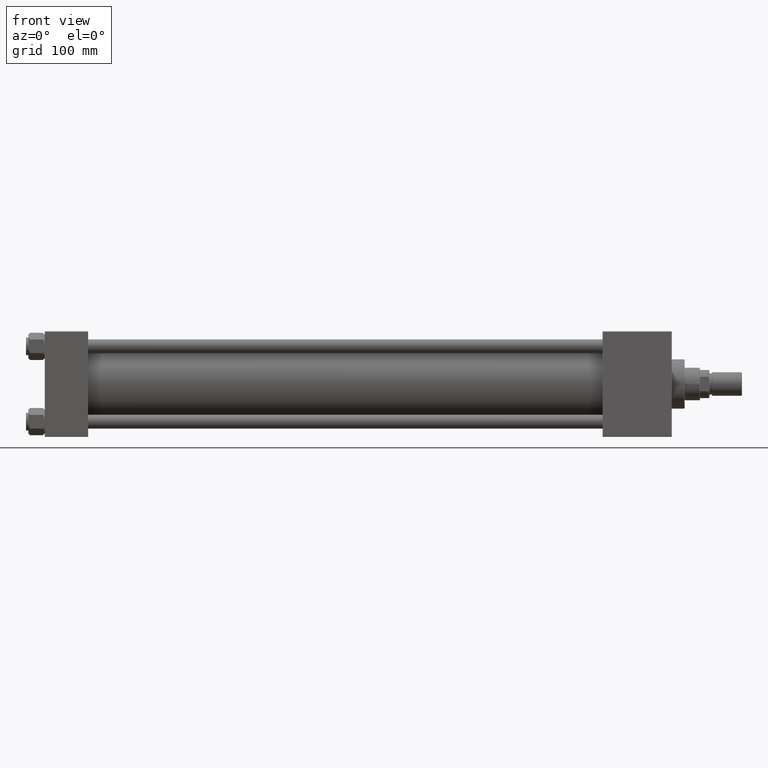
[diagram: clean part render]
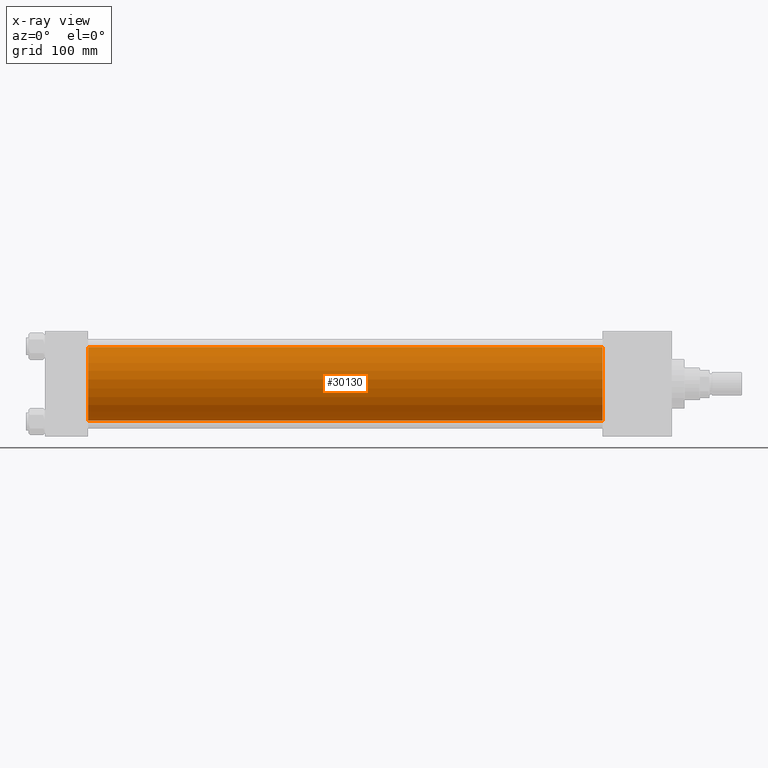
[diagram: x-ray — body ghosted, one internal face saturated and labeled with its STEP entity id]
A machine part, front view, then the same camera in x-ray: the body is ghosted and one INTERNAL B-rep face — a face not visible from any outside direction — is saturated and labeled: STEP entity #30130.
In plain terms, the highlighted cylindrical surface (partial cylindrical patch) has radius 31.5 mm, axis along (-1, -0, -0).
Its self-contained STEP definition (entity closure, byte-faithful):
#1455 = ORIENTED_EDGE ( 'NONE', *, *, #29909, .T. ) ;
#1907 = LINE ( 'NONE', #41224, #3285 ) ;
#1989 = EDGE_CURVE ( 'NONE', #7949, #40959, #1907, .T. ) ;
#2878 = CARTESIAN_POINT ( 'NONE',  ( 37.00000000000000000, 1.255552203348951850E-15, -31.50000000000000000 ) ) ;
#3158 = ORIENTED_EDGE ( 'NONE', *, *, #1989, .T. ) ;
#3285 = VECTOR ( 'NONE', #6266, 1000.000000000000000 ) ;
#4655 = CARTESIAN_POINT ( 'NONE',  ( 476.0000000000000000, 1.255552203348951850E-15, -31.50000000000000000 ) ) ;
#4938 = EDGE_CURVE ( 'NONE', #40442, #25687, #35024, .T. ) ;
#6266 = DIRECTION ( 'NONE',  ( -1.000000000000000000, -0.000000000000000000, -0.000000000000000000 ) ) ;
#6281 = CARTESIAN_POINT ( 'NONE',  ( 476.0000000000000000, -2.602085213965210642E-15, 0.000000000000000000 ) ) ;
#7949 = VERTEX_POINT ( 'NONE', #4655 ) ;
#10154 = DIRECTION ( 'NONE',  ( 0.000000000000000000, 0.000000000000000000, -1.000000000000000000 ) ) ;
#15573 = CIRCLE ( 'NONE', #41848, 31.50000000000000000 ) ;
#19038 = DIRECTION ( 'NONE',  ( 0.000000000000000000, 0.000000000000000000, -1.000000000000000000 ) ) ;
#19540 = DIRECTION ( 'NONE',  ( 1.000000000000000000, 0.000000000000000000, 0.000000000000000000 ) ) ;
#20447 = CARTESIAN_POINT ( 'NONE',  ( 476.0000000000000000, -2.602085213965210642E-15, 31.50000000000000000 ) ) ;
#21298 = ORIENTED_EDGE ( 'NONE', *, *, #45336, .F. ) ;
#22621 = ORIENTED_EDGE ( 'NONE', *, *, #4938, .F. ) ;
#25687 = VERTEX_POINT ( 'NONE', #34522 ) ;
#26070 = DIRECTION ( 'NONE',  ( -1.000000000000000000, -0.000000000000000000, -0.000000000000000000 ) ) ;
#26568 = CARTESIAN_POINT ( 'NONE',  ( 476.0000000000000000, -2.602085213965210642E-15, 0.000000000000000000 ) ) ;
#27099 = AXIS2_PLACEMENT_3D ( 'NONE', #26568, #26070, #41749 ) ;
#29909 = EDGE_CURVE ( 'NONE', #40442, #7949, #33661, .T. ) ;
#30130 = ADVANCED_FACE ( 'NONE', ( #34758 ), #41999, .F. ) ;
#33661 = CIRCLE ( 'NONE', #42690, 31.50000000000000000 ) ;
#34522 = CARTESIAN_POINT ( 'NONE',  ( 37.00000000000000000, -2.602085213965210642E-15, 31.50000000000000000 ) ) ;
#34758 = FACE_OUTER_BOUND ( 'NONE', #40464, .T. ) ;
#35024 = LINE ( 'NONE', #50736, #41248 ) ;
#35682 = CARTESIAN_POINT ( 'NONE',  ( 37.00000000000000000, -2.602085213965210642E-15, 0.000000000000000000 ) ) ;
#40442 = VERTEX_POINT ( 'NONE', #20447 ) ;
#40464 = EDGE_LOOP ( 'NONE', ( #1455, #3158, #21298, #22621 ) ) ;
#40959 = VERTEX_POINT ( 'NONE', #2878 ) ;
#41224 = CARTESIAN_POINT ( 'NONE',  ( 476.0000000000000000, 1.255552203348951850E-15, -31.50000000000000000 ) ) ;
#41248 = VECTOR ( 'NONE', #43506, 1000.000000000000000 ) ;
#41749 = DIRECTION ( 'NONE',  ( 0.000000000000000000, 0.000000000000000000, 1.000000000000000000 ) ) ;
#41848 = AXIS2_PLACEMENT_3D ( 'NONE', #35682, #19540, #19038 ) ;
#41999 = CYLINDRICAL_SURFACE ( 'NONE', #27099, 31.50000000000000000 ) ;
#42690 = AXIS2_PLACEMENT_3D ( 'NONE', #6281, #49219, #10154 ) ;
#43506 = DIRECTION ( 'NONE',  ( -1.000000000000000000, -0.000000000000000000, -0.000000000000000000 ) ) ;
#45336 = EDGE_CURVE ( 'NONE', #25687, #40959, #15573, .T. ) ;
#49219 = DIRECTION ( 'NONE',  ( 1.000000000000000000, 0.000000000000000000, 0.000000000000000000 ) ) ;
#50736 = CARTESIAN_POINT ( 'NONE',  ( 476.0000000000000000, -2.602085213965210642E-15, 31.50000000000000000 ) ) ;